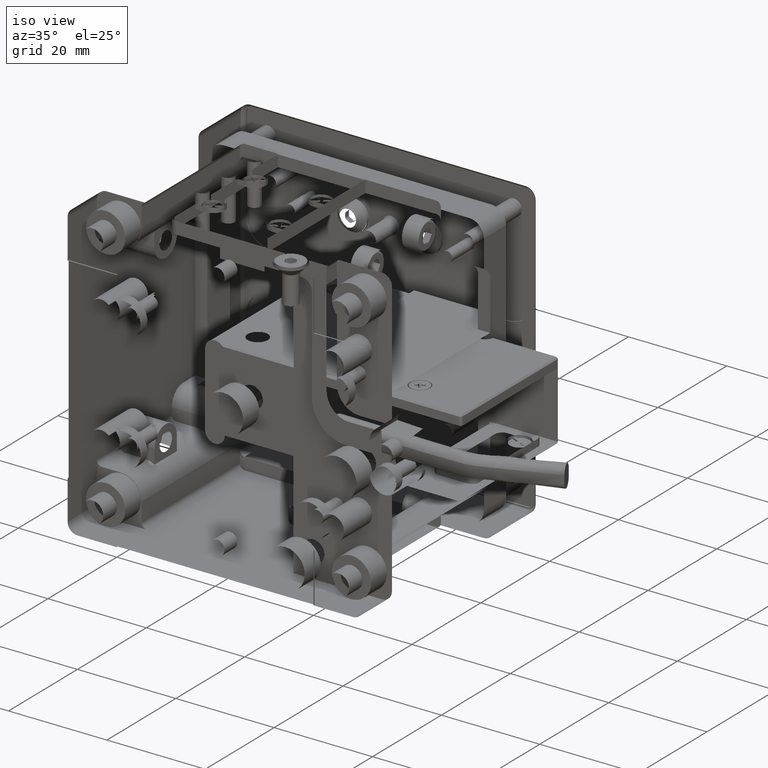
[diagram: clean part render]
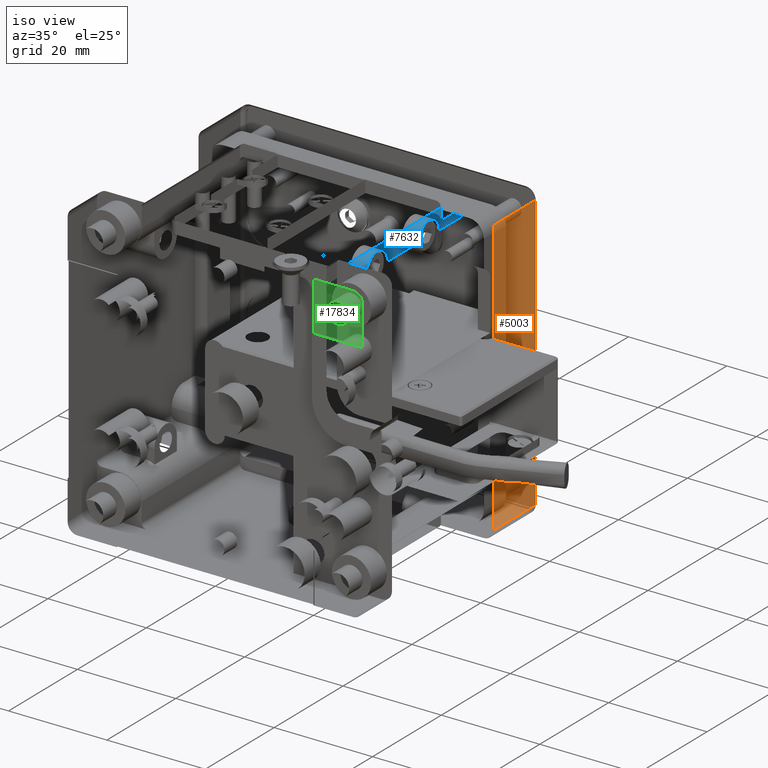
[diagram: same view with three faces highlighted in distinct colors, each labeled with its STEP entity id]
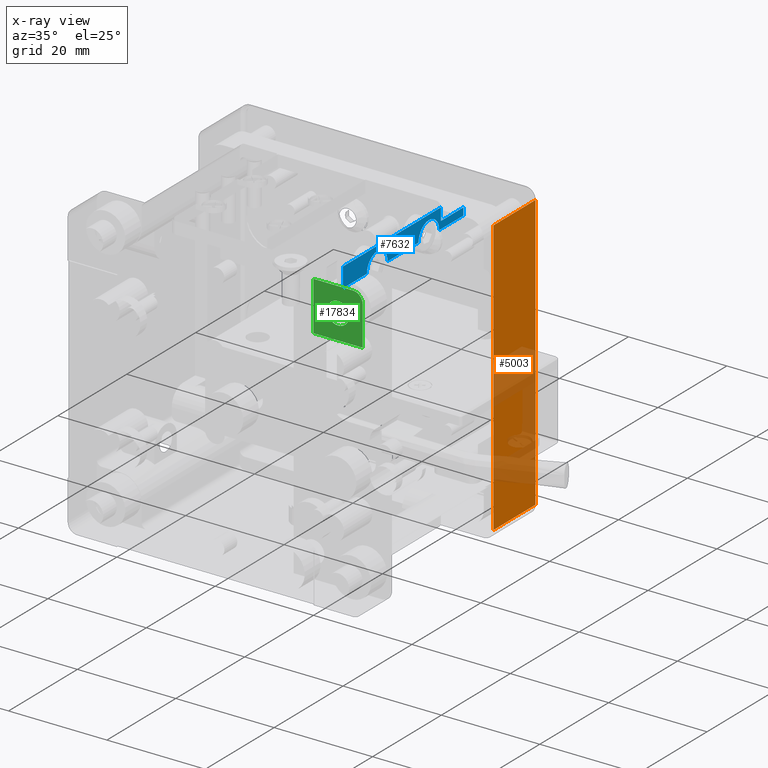
[diagram: x-ray of the same camera — body ghosted, the three highlighted faces saturated]
A machine part, iso view with three faces highlighted in distinct colors.
The next image is the same camera in x-ray (body ghosted, the three faces saturated) — at least one of them is partly hidden behind the body in this view.
Their STEP definitions:

[orange] entity #5003 — the highlighted planar face has unit normal (-1, 0, 0).
#769 = ORIENTED_EDGE ( 'NONE', *, *, #21274, .T. ) ;
#987 = CARTESIAN_POINT ( 'NONE',  ( 30.00000000000000000, 38.00000000000000711, 0.000000000000000000 ) ) ;
#2776 = DIRECTION ( 'NONE',  ( -0.000000000000000000, 0.000000000000000000, 1.000000000000000000 ) ) ;
#3856 = FACE_OUTER_BOUND ( 'NONE', #8399, .T. ) ;
#4397 = CARTESIAN_POINT ( 'NONE',  ( 29.99999999997897504, 50.20000000001871143, 27.99999999999999645 ) ) ;
#5003 = ADVANCED_FACE ( 'NONE', ( #3856 ), #26238, .T. ) ;
#5311 = VERTEX_POINT ( 'NONE', #19685 ) ;
#5931 = DIRECTION ( 'NONE',  ( -1.000000000000000000, 0.000000000000000000, 1.156482317317871478E-16 ) ) ;
#8160 = VECTOR ( 'NONE', #2776, 1000.000000000000000 ) ;
#8399 = EDGE_LOOP ( 'NONE', ( #10009, #26374, #769, #29165 ) ) ;
#10009 = ORIENTED_EDGE ( 'NONE', *, *, #20220, .T. ) ;
#10347 = CARTESIAN_POINT ( 'NONE',  ( 30.00000000000000711, 38.00000000000000711, 27.99999999999999645 ) ) ;
#10401 = VECTOR ( 'NONE', #12256, 1000.000000000000000 ) ;
#10643 = LINE ( 'NONE', #24131, #24235 ) ;
#12256 = DIRECTION ( 'NONE',  ( -0.000000000000000000, 1.000000000000000000, -0.000000000000000000 ) ) ;
#13766 = VECTOR ( 'NONE', #16263, 1000.000000000000000 ) ;
#14925 = LINE ( 'NONE', #23668, #10401 ) ;
#15615 = VERTEX_POINT ( 'NONE', #4397 ) ;
#16263 = DIRECTION ( 'NONE',  ( -1.156482317317871478E-16, -0.000000000000000000, -1.000000000000000000 ) ) ;
#16398 = LINE ( 'NONE', #16707, #13766 ) ;
#16707 = CARTESIAN_POINT ( 'NONE',  ( 30.00000000000000000, 50.19999999999999574, -30.00000000000000000 ) ) ;
#16719 = VERTEX_POINT ( 'NONE', #28513 ) ;
#17408 = VERTEX_POINT ( 'NONE', #10347 ) ;
#17888 = AXIS2_PLACEMENT_3D ( 'NONE', #24312, #5931, #22070 ) ;
#19685 = CARTESIAN_POINT ( 'NONE',  ( 29.99999999999317879, 50.20000000001871143, -28.00000000000000000 ) ) ;
#20220 = EDGE_CURVE ( 'NONE', #15615, #5311, #16398, .T. ) ;
#21016 = EDGE_CURVE ( 'NONE', #5311, #16719, #10643, .T. ) ;
#21274 = EDGE_CURVE ( 'NONE', #16719, #17408, #27956, .T. ) ;
#22070 = DIRECTION ( 'NONE',  ( 1.156482317317871478E-16, 0.000000000000000000, 1.000000000000000000 ) ) ;
#23668 = CARTESIAN_POINT ( 'NONE',  ( 30.00000000000001066, 50.70000000000000284, 27.99999999999999645 ) ) ;
#24131 = CARTESIAN_POINT ( 'NONE',  ( 29.99999999999999645, 50.70000000000000284, -28.00000000000000000 ) ) ;
#24235 = VECTOR ( 'NONE', #26651, 1000.000000000000000 ) ;
#24312 = CARTESIAN_POINT ( 'NONE',  ( 30.00000000000000000, 50.70000000000000284, -30.00000000000000000 ) ) ;
#26238 = PLANE ( 'NONE',  #17888 ) ;
#26374 = ORIENTED_EDGE ( 'NONE', *, *, #21016, .T. ) ;
#26651 = DIRECTION ( 'NONE',  ( 0.000000000000000000, -1.000000000000000000, 0.000000000000000000 ) ) ;
#27528 = EDGE_CURVE ( 'NONE', #17408, #15615, #14925, .T. ) ;
#27956 = LINE ( 'NONE', #987, #8160 ) ;
#28513 = CARTESIAN_POINT ( 'NONE',  ( 30.00000000000000000, 38.00000000000000711, -28.00000000000000000 ) ) ;
#29165 = ORIENTED_EDGE ( 'NONE', *, *, #27528, .T. ) ;

[blue] entity #7632 — the highlighted planar face has unit normal (-1, 0, 0).
#172 = VERTEX_POINT ( 'NONE', #28204 ) ;
#205 = LINE ( 'NONE', #5216, #10012 ) ;
#458 = CARTESIAN_POINT ( 'NONE',  ( 20.00000000000000000, 33.50000000000000000, 24.99999999999999289 ) ) ;
#754 = CARTESIAN_POINT ( 'NONE',  ( 20.00000000000000000, 37.00000000000000711, 19.99999999999999289 ) ) ;
#1493 = CARTESIAN_POINT ( 'NONE',  ( 20.00000000000000000, 15.50000000000000000, 24.99999999999999289 ) ) ;
#1545 = EDGE_CURVE ( 'NONE', #20307, #22497, #4496, .T. ) ;
#1732 = LINE ( 'NONE', #4396, #24770 ) ;
#2673 = CARTESIAN_POINT ( 'NONE',  ( 20.00000000000000000, 43.50000000000001421, 24.99999999999999289 ) ) ;
#2785 = CARTESIAN_POINT ( 'NONE',  ( 20.00000000000000000, 30.50000000000000000, 24.99999999999999289 ) ) ;
#2990 = DIRECTION ( 'NONE',  ( -0.000000000000000000, -1.000000000000000000, 0.000000000000000000 ) ) ;
#3148 = VERTEX_POINT ( 'NONE', #2785 ) ;
#3304 = ORIENTED_EDGE ( 'NONE', *, *, #25803, .T. ) ;
#3377 = DIRECTION ( 'NONE',  ( 0.000000000000000000, 0.000000000000000000, -1.000000000000000000 ) ) ;
#3460 = EDGE_CURVE ( 'NONE', #14878, #20307, #12673, .T. ) ;
#4203 = VECTOR ( 'NONE', #26774, 1000.000000000000000 ) ;
#4208 = ORIENTED_EDGE ( 'NONE', *, *, #25004, .T. ) ;
#4396 = CARTESIAN_POINT ( 'NONE',  ( 20.00000000000000000, 72.79095423505350482, 24.99999999999999289 ) ) ;
#4496 = LINE ( 'NONE', #23005, #15547 ) ;
#4780 = DIRECTION ( 'NONE',  ( -0.000000000000000000, -0.000000000000000000, -1.000000000000000000 ) ) ;
#4899 = EDGE_CURVE ( 'NONE', #22433, #23783, #18538, .T. ) ;
#4929 = EDGE_CURVE ( 'NONE', #10281, #22433, #22991, .T. ) ;
#5216 = CARTESIAN_POINT ( 'NONE',  ( 20.00000000000000000, 72.79095423505350482, 24.99999999999999289 ) ) ;
#5283 = EDGE_CURVE ( 'NONE', #23839, #10281, #8186, .T. ) ;
#6180 = DIRECTION ( 'NONE',  ( 1.000000000000000000, 0.000000000000000000, 0.000000000000000000 ) ) ;
#6335 = CARTESIAN_POINT ( 'NONE',  ( 20.00000000000000000, 72.79095423505350482, 28.99999999999998934 ) ) ;
#6566 = DIRECTION ( 'NONE',  ( -1.000000000000000000, 0.000000000000000000, 0.000000000000000000 ) ) ;
#7062 = AXIS2_PLACEMENT_3D ( 'NONE', #458, #22530, #16163 ) ;
#7100 = ORIENTED_EDGE ( 'NONE', *, *, #4899, .T. ) ;
#7314 = DIRECTION ( 'NONE',  ( 1.000000000000000000, 0.000000000000000000, 0.000000000000000000 ) ) ;
#7632 = ADVANCED_FACE ( 'NONE', ( #21547 ), #15455, .T. ) ;
#7821 = ORIENTED_EDGE ( 'NONE', *, *, #28996, .T. ) ;
#8004 = CIRCLE ( 'NONE', #21232, 2.999999999999999112 ) ;
#8090 = CARTESIAN_POINT ( 'NONE',  ( 20.00000000000000000, 8.499999999999994671, 28.99999999999998934 ) ) ;
#8186 = CIRCLE ( 'NONE', #10085, 2.999999999999999112 ) ;
#8535 = DIRECTION ( 'NONE',  ( -0.000000000000000000, -1.000000000000000000, 0.000000000000000000 ) ) ;
#8982 = LINE ( 'NONE', #6335, #4203 ) ;
#9087 = CARTESIAN_POINT ( 'NONE',  ( 20.00000000000000000, 37.00000000000000711, 26.49999999999999645 ) ) ;
#9771 = DIRECTION ( 'NONE',  ( -0.000000000000000000, -0.000000000000000000, -1.000000000000000000 ) ) ;
#10012 = VECTOR ( 'NONE', #23448, 1000.000000000000000 ) ;
#10085 = AXIS2_PLACEMENT_3D ( 'NONE', #26346, #6180, #3377 ) ;
#10281 = VERTEX_POINT ( 'NONE', #1493 ) ;
#10617 = CARTESIAN_POINT ( 'NONE',  ( 20.00000000000000000, 72.79095423505350482, 26.49999999999999645 ) ) ;
#11226 = ORIENTED_EDGE ( 'NONE', *, *, #26105, .T. ) ;
#11803 = CARTESIAN_POINT ( 'NONE',  ( 20.00000000000000000, 43.50000000000001421, 26.49999999999999645 ) ) ;
#11856 = DIRECTION ( 'NONE',  ( -0.000000000000000000, 0.000000000000000000, 1.000000000000000000 ) ) ;
#12005 = LINE ( 'NONE', #754, #23596 ) ;
#12673 = LINE ( 'NONE', #10617, #12779 ) ;
#12779 = VECTOR ( 'NONE', #24101, 1000.000000000000000 ) ;
#13299 = AXIS2_PLACEMENT_3D ( 'NONE', #21358, #7314, #16343 ) ;
#13545 = CARTESIAN_POINT ( 'NONE',  ( 20.00000000000000000, 18.50000000000000000, 24.99999999999999289 ) ) ;
#13615 = ORIENTED_EDGE ( 'NONE', *, *, #15026, .T. ) ;
#13698 = VERTEX_POINT ( 'NONE', #26135 ) ;
#14084 = CARTESIAN_POINT ( 'NONE',  ( 20.00000000000000000, 8.499999999999998224, 0.000000000000000000 ) ) ;
#14878 = VERTEX_POINT ( 'NONE', #9087 ) ;
#15026 = EDGE_CURVE ( 'NONE', #172, #3148, #25170, .T. ) ;
#15455 = PLANE ( 'NONE',  #20461 ) ;
#15547 = VECTOR ( 'NONE', #4780, 1000.000000000000000 ) ;
#15783 = DIRECTION ( 'NONE',  ( 0.000000000000000000, 0.000000000000000000, -1.000000000000000000 ) ) ;
#15932 = CARTESIAN_POINT ( 'NONE',  ( 20.00000000000000000, 37.00000000000000711, 28.99999999999998934 ) ) ;
#16163 = DIRECTION ( 'NONE',  ( 0.000000000000000000, 0.000000000000000000, -1.000000000000000000 ) ) ;
#16343 = DIRECTION ( 'NONE',  ( 0.000000000000000000, 0.000000000000000000, -1.000000000000000000 ) ) ;
#16517 = VERTEX_POINT ( 'NONE', #15932 ) ;
#16828 = ORIENTED_EDGE ( 'NONE', *, *, #25958, .T. ) ;
#16989 = CARTESIAN_POINT ( 'NONE',  ( 20.00000000000000000, 18.50000000000000000, 27.99999999999999289 ) ) ;
#17546 = ORIENTED_EDGE ( 'NONE', *, *, #1545, .T. ) ;
#17563 = DIRECTION ( 'NONE',  ( 1.000000000000000000, 0.000000000000000000, 0.000000000000000000 ) ) ;
#17564 = ORIENTED_EDGE ( 'NONE', *, *, #23208, .T. ) ;
#17705 = CARTESIAN_POINT ( 'NONE',  ( 20.00000000000000000, 72.79095423505350482, 19.99999999999999289 ) ) ;
#18538 = LINE ( 'NONE', #14084, #26411 ) ;
#19053 = ORIENTED_EDGE ( 'NONE', *, *, #4929, .T. ) ;
#20307 = VERTEX_POINT ( 'NONE', #11803 ) ;
#20461 = AXIS2_PLACEMENT_3D ( 'NONE', #17705, #6566, #26731 ) ;
#21147 = ORIENTED_EDGE ( 'NONE', *, *, #3460, .T. ) ;
#21232 = AXIS2_PLACEMENT_3D ( 'NONE', #13545, #17563, #15783 ) ;
#21358 = CARTESIAN_POINT ( 'NONE',  ( 20.00000000000000000, 33.50000000000000000, 24.99999999999999289 ) ) ;
#21547 = FACE_OUTER_BOUND ( 'NONE', #22268, .T. ) ;
#22268 = EDGE_LOOP ( 'NONE', ( #21147, #17546, #17564, #3304, #13615, #4208, #7821, #23654, #19053, #7100, #11226, #16828 ) ) ;
#22433 = VERTEX_POINT ( 'NONE', #27135 ) ;
#22497 = VERTEX_POINT ( 'NONE', #2673 ) ;
#22530 = DIRECTION ( 'NONE',  ( 1.000000000000000000, 0.000000000000000000, 0.000000000000000000 ) ) ;
#22991 = LINE ( 'NONE', #23426, #25462 ) ;
#23005 = CARTESIAN_POINT ( 'NONE',  ( 20.00000000000000000, 43.50000000000001421, 19.99999999999999289 ) ) ;
#23208 = EDGE_CURVE ( 'NONE', #22497, #27351, #205, .T. ) ;
#23426 = CARTESIAN_POINT ( 'NONE',  ( 20.00000000000000000, 72.79095423505350482, 24.99999999999999289 ) ) ;
#23448 = DIRECTION ( 'NONE',  ( -0.000000000000000000, -1.000000000000000000, 0.000000000000000000 ) ) ;
#23596 = VECTOR ( 'NONE', #9771, 1000.000000000000000 ) ;
#23654 = ORIENTED_EDGE ( 'NONE', *, *, #5283, .T. ) ;
#23783 = VERTEX_POINT ( 'NONE', #8090 ) ;
#23839 = VERTEX_POINT ( 'NONE', #16989 ) ;
#24101 = DIRECTION ( 'NONE',  ( 0.000000000000000000, 1.000000000000000000, -0.000000000000000000 ) ) ;
#24770 = VECTOR ( 'NONE', #8535, 1000.000000000000000 ) ;
#25004 = EDGE_CURVE ( 'NONE', #3148, #13698, #1732, .T. ) ;
#25040 = CIRCLE ( 'NONE', #7062, 3.000000000000002665 ) ;
#25170 = CIRCLE ( 'NONE', #13299, 3.000000000000002665 ) ;
#25462 = VECTOR ( 'NONE', #2990, 1000.000000000000000 ) ;
#25803 = EDGE_CURVE ( 'NONE', #27351, #172, #25040, .T. ) ;
#25958 = EDGE_CURVE ( 'NONE', #16517, #14878, #12005, .T. ) ;
#26105 = EDGE_CURVE ( 'NONE', #23783, #16517, #8982, .T. ) ;
#26135 = CARTESIAN_POINT ( 'NONE',  ( 20.00000000000000000, 21.50000000000000000, 24.99999999999999289 ) ) ;
#26346 = CARTESIAN_POINT ( 'NONE',  ( 20.00000000000000000, 18.50000000000000000, 24.99999999999999289 ) ) ;
#26411 = VECTOR ( 'NONE', #11856, 1000.000000000000000 ) ;
#26680 = CARTESIAN_POINT ( 'NONE',  ( 20.00000000000000000, 36.50000000000000711, 24.99999999999999289 ) ) ;
#26731 = DIRECTION ( 'NONE',  ( 0.000000000000000000, 0.000000000000000000, 1.000000000000000000 ) ) ;
#26774 = DIRECTION ( 'NONE',  ( 0.000000000000000000, 1.000000000000000000, -0.000000000000000000 ) ) ;
#27135 = CARTESIAN_POINT ( 'NONE',  ( 20.00000000000000000, 8.499999999999994671, 24.99999999999999289 ) ) ;
#27351 = VERTEX_POINT ( 'NONE', #26680 ) ;
#28204 = CARTESIAN_POINT ( 'NONE',  ( 20.00000000000000000, 33.50000000000000000, 27.99999999999999645 ) ) ;
#28996 = EDGE_CURVE ( 'NONE', #13698, #23839, #8004, .T. ) ;

[green] entity #17834 — the highlighted planar face has unit normal (0, 1, 0).
#97 = FACE_BOUND ( 'NONE', #28362, .T. ) ;
#1277 = CARTESIAN_POINT ( 'NONE',  ( 27.99999999999999645, 0.000000000000000000, 29.99999999999999289 ) ) ;
#1556 = EDGE_CURVE ( 'NONE', #24545, #15215, #20772, .T. ) ;
#1839 = ORIENTED_EDGE ( 'NONE', *, *, #15780, .F. ) ;
#2212 = EDGE_CURVE ( 'NONE', #28986, #24545, #6938, .T. ) ;
#2496 = DIRECTION ( 'NONE',  ( -1.000000000000000000, 0.000000000000000000, 1.156482317317871725E-16 ) ) ;
#2513 = ORIENTED_EDGE ( 'NONE', *, *, #28419, .T. ) ;
#3044 = CIRCLE ( 'NONE', #27178, 2.249999999999998668 ) ;
#3436 = CARTESIAN_POINT ( 'NONE',  ( 19.99999999999999645, 0.000000000000000000, 30.00000000000000000 ) ) ;
#4001 = CARTESIAN_POINT ( 'NONE',  ( 19.99999999999999645, 0.000000000000000000, 30.00000000000000000 ) ) ;
#4162 = AXIS2_PLACEMENT_3D ( 'NONE', #8414, #17459, #5742 ) ;
#4554 = ORIENTED_EDGE ( 'NONE', *, *, #2212, .F. ) ;
#5742 = DIRECTION ( 'NONE',  ( 0.000000000000000000, 0.000000000000000000, 1.000000000000000000 ) ) ;
#6247 = CARTESIAN_POINT ( 'NONE',  ( 19.99999999999999645, 0.000000000000000000, 20.00000000000000000 ) ) ;
#6318 = VECTOR ( 'NONE', #25150, 1000.000000000000000 ) ;
#6332 = DIRECTION ( 'NONE',  ( 0.000000000000000000, -0.000000000000000000, 1.000000000000000000 ) ) ;
#6912 = CARTESIAN_POINT ( 'NONE',  ( 0.000000000000000000, 0.000000000000000000, 0.000000000000000000 ) ) ;
#6938 = LINE ( 'NONE', #11077, #21139 ) ;
#7377 = DIRECTION ( 'NONE',  ( -0.000000000000000000, 1.000000000000000000, -0.000000000000000000 ) ) ;
#8371 = CARTESIAN_POINT ( 'NONE',  ( 29.99999999999999645, 0.000000000000000000, 27.99999999999998934 ) ) ;
#8414 = CARTESIAN_POINT ( 'NONE',  ( 25.00000000000000355, 0.000000000000000000, 24.99999999999999645 ) ) ;
#8977 = LINE ( 'NONE', #14009, #26632 ) ;
#9137 = PLANE ( 'NONE',  #24180 ) ;
#9969 = DIRECTION ( 'NONE',  ( -0.000000000000000000, -1.000000000000000000, -0.000000000000000000 ) ) ;
#10231 = DIRECTION ( 'NONE',  ( 0.000000000000000000, 0.000000000000000000, -1.000000000000000000 ) ) ;
#10713 = EDGE_CURVE ( 'NONE', #11068, #19173, #20835, .T. ) ;
#11068 = VERTEX_POINT ( 'NONE', #22734 ) ;
#11077 = CARTESIAN_POINT ( 'NONE',  ( 29.99999999999999645, 0.000000000000000000, 29.99999999999999289 ) ) ;
#11220 = EDGE_CURVE ( 'NONE', #20234, #12588, #3044, .T. ) ;
#11459 = CIRCLE ( 'NONE', #22817, 2.000000000000001776 ) ;
#12588 = VERTEX_POINT ( 'NONE', #22083 ) ;
#14009 = CARTESIAN_POINT ( 'NONE',  ( 29.99999999999999645, 0.000000000000000000, 20.00000000000000000 ) ) ;
#15215 = VERTEX_POINT ( 'NONE', #6247 ) ;
#15637 = DIRECTION ( 'NONE',  ( 0.000000000000000000, 1.000000000000000000, 0.000000000000000000 ) ) ;
#15780 = EDGE_CURVE ( 'NONE', #15215, #11068, #8977, .T. ) ;
#16410 = CARTESIAN_POINT ( 'NONE',  ( 27.99999999999999645, 0.000000000000000000, 27.99999999999998934 ) ) ;
#17459 = DIRECTION ( 'NONE',  ( -0.000000000000000000, -1.000000000000000000, -0.000000000000000000 ) ) ;
#17834 = ADVANCED_FACE ( 'NONE', ( #27219, #97 ), #9137, .T. ) ;
#18021 = DIRECTION ( 'NONE',  ( 1.000000000000000000, 0.000000000000000000, -0.000000000000000000 ) ) ;
#18318 = ORIENTED_EDGE ( 'NONE', *, *, #11220, .T. ) ;
#19026 = DIRECTION ( 'NONE',  ( 0.000000000000000000, 0.000000000000000000, 1.000000000000000000 ) ) ;
#19173 = VERTEX_POINT ( 'NONE', #8371 ) ;
#20234 = VERTEX_POINT ( 'NONE', #25444 ) ;
#20256 = CIRCLE ( 'NONE', #4162, 2.249999999999998668 ) ;
#20772 = LINE ( 'NONE', #3436, #22167 ) ;
#20835 = LINE ( 'NONE', #25001, #6318 ) ;
#21139 = VECTOR ( 'NONE', #2496, 1000.000000000000000 ) ;
#21720 = EDGE_LOOP ( 'NONE', ( #28954, #22889, #1839, #26337, #4554 ) ) ;
#22083 = CARTESIAN_POINT ( 'NONE',  ( 25.00000000000000355, 0.000000000000000000, 22.75000000000000000 ) ) ;
#22167 = VECTOR ( 'NONE', #10231, 1000.000000000000000 ) ;
#22624 = DIRECTION ( 'NONE',  ( 0.000000000000000000, 0.000000000000000000, -1.000000000000000000 ) ) ;
#22734 = CARTESIAN_POINT ( 'NONE',  ( 29.99999999999999645, 0.000000000000000000, 20.00000000000000000 ) ) ;
#22817 = AXIS2_PLACEMENT_3D ( 'NONE', #16410, #7377, #22624 ) ;
#22889 = ORIENTED_EDGE ( 'NONE', *, *, #10713, .F. ) ;
#23655 = EDGE_CURVE ( 'NONE', #28986, #19173, #11459, .T. ) ;
#24180 = AXIS2_PLACEMENT_3D ( 'NONE', #6912, #15637, #6332 ) ;
#24545 = VERTEX_POINT ( 'NONE', #4001 ) ;
#25001 = CARTESIAN_POINT ( 'NONE',  ( 29.99999999999999645, 0.000000000000000000, 29.99999999999999289 ) ) ;
#25150 = DIRECTION ( 'NONE',  ( 0.000000000000000000, 0.000000000000000000, 1.000000000000000000 ) ) ;
#25444 = CARTESIAN_POINT ( 'NONE',  ( 25.00000000000000355, 0.000000000000000000, 27.24999999999999645 ) ) ;
#26337 = ORIENTED_EDGE ( 'NONE', *, *, #1556, .F. ) ;
#26632 = VECTOR ( 'NONE', #18021, 1000.000000000000000 ) ;
#27178 = AXIS2_PLACEMENT_3D ( 'NONE', #27636, #9969, #19026 ) ;
#27219 = FACE_OUTER_BOUND ( 'NONE', #21720, .T. ) ;
#27636 = CARTESIAN_POINT ( 'NONE',  ( 25.00000000000000355, 0.000000000000000000, 24.99999999999999645 ) ) ;
#28362 = EDGE_LOOP ( 'NONE', ( #18318, #2513 ) ) ;
#28419 = EDGE_CURVE ( 'NONE', #12588, #20234, #20256, .T. ) ;
#28954 = ORIENTED_EDGE ( 'NONE', *, *, #23655, .T. ) ;
#28986 = VERTEX_POINT ( 'NONE', #1277 ) ;